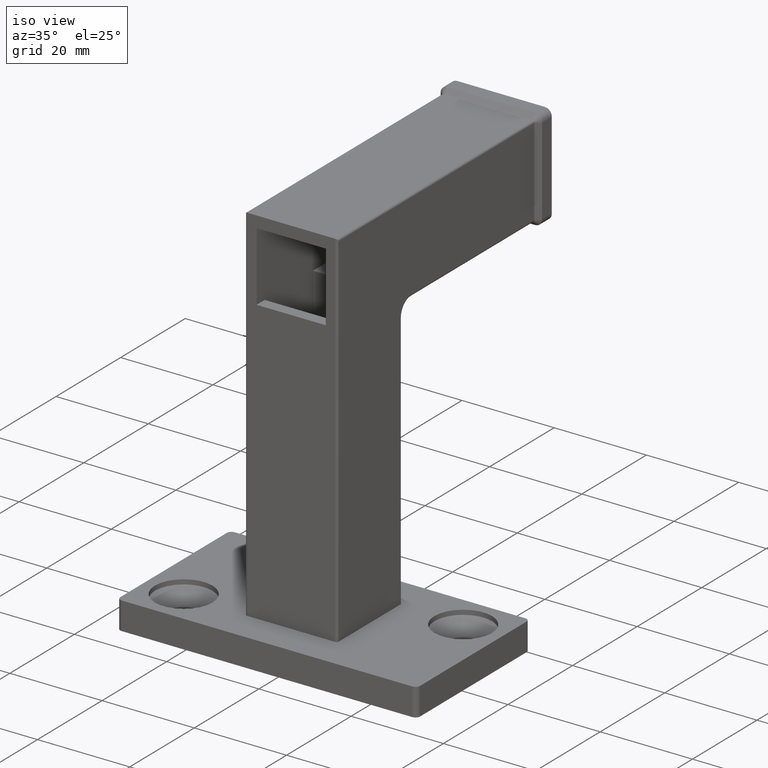
[diagram: clean part render]
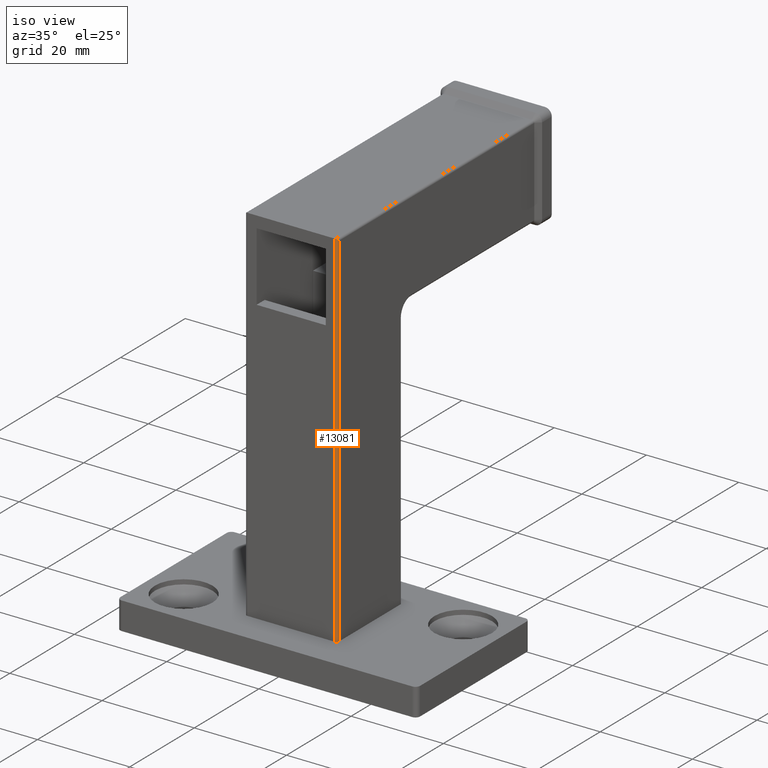
[diagram: same view with one face highlighted and labeled with its STEP entity id]
A machine part, iso view. The second image highlights one B-rep face of the part: STEP entity #13081.
In plain terms, the highlighted cylindrical surface (edge-blend (fillet) strip) has radius 0.5 mm, axis along (0, 0, -1).
Its self-contained STEP definition (entity closure, byte-faithful):
#196 = EDGE_CURVE ( 'NONE', #2742, #10116, #4593, .T. ) ;
#764 = LINE ( 'NONE', #5432, #9375 ) ;
#866 = EDGE_CURVE ( 'NONE', #10116, #13154, #764, .T. ) ;
#870 = ORIENTED_EDGE ( 'NONE', *, *, #10355, .F. ) ;
#2742 = VERTEX_POINT ( 'NONE', #13464 ) ;
#2950 = CARTESIAN_POINT ( 'NONE',  ( 9.792893218813455647, -10.00000000000000533, 84.99999999999998579 ) ) ;
#3315 = DIRECTION ( 'NONE',  ( 2.736911063134408949E-48, 1.224646799147353454E-16, -1.000000000000000000 ) ) ;
#3329 = AXIS2_PLACEMENT_3D ( 'NONE', #8799, #11838, #3648 ) ;
#3442 = CARTESIAN_POINT ( 'NONE',  ( 9.499999999999998224, -9.500000000000007105, 103.2842712474619020 ) ) ;
#3648 = DIRECTION ( 'NONE',  ( -1.000000000000000000, 0.000000000000000000, 0.000000000000000000 ) ) ;
#4034 = EDGE_LOOP ( 'NONE', ( #8776, #10284, #870, #10896 ) ) ;
#4308 = DIRECTION ( 'NONE',  ( -3.038581678643136274E-64, -1.224646799147353454E-16, 1.000000000000000000 ) ) ;
#4393 = CARTESIAN_POINT ( 'NONE',  ( 9.499999999999998224, -10.00000000000000888, 84.99999999999998579 ) ) ;
#4431 = DIRECTION ( 'NONE',  ( 3.038581678643136274E-64, 1.224646799147353454E-16, -1.000000000000000000 ) ) ;
#4477 = CARTESIAN_POINT ( 'NONE',  ( 9.999999999999998224, -9.500000000000003553, 103.2842712474619020 ) ) ;
#4593 = CIRCLE ( 'NONE', #3329, 0.5000000000000004441 ) ;
#5432 = CARTESIAN_POINT ( 'NONE',  ( 9.499999999999998224, -10.00000000000001066, 103.2842712474619020 ) ) ;
#6116 = CARTESIAN_POINT ( 'NONE',  ( 9.999999999999998224, -9.500000000000005329, 84.49999999999997158 ) ) ;
#6150 = AXIS2_PLACEMENT_3D ( 'NONE', #3442, #4431, #12737 ) ;
#6421 = LINE ( 'NONE', #4477, #7222 ) ;
#6661 = EDGE_CURVE ( 'NONE', #7411, #2742, #6421, .T. ) ;
#6786 = CARTESIAN_POINT ( 'NONE',  ( 9.499999999999998224, -9.999999999999998224, 6.000000000000000000 ) ) ;
#7222 = VECTOR ( 'NONE', #3315, 1000.000000000000000 ) ;
#7411 = VERTEX_POINT ( 'NONE', #8895 ) ;
#8776 = ORIENTED_EDGE ( 'NONE', *, *, #196, .F. ) ;
#8799 = CARTESIAN_POINT ( 'NONE',  ( 9.499999999999998224, -9.499999999999994671, 6.000000000000005329 ) ) ;
#8871 =( BOUNDED_CURVE ( )  B_SPLINE_CURVE ( 3, ( #12334, #2950, #10207, #6116 ),
 .UNSPECIFIED., .F., .F. ) 
 B_SPLINE_CURVE_WITH_KNOTS ( ( 4, 4 ),
 ( 3.141592653589793116, 4.712388980384710102 ),
 .UNSPECIFIED. ) 
 CURVE ( )  GEOMETRIC_REPRESENTATION_ITEM ( )  RATIONAL_B_SPLINE_CURVE ( ( 1.000000000000000000, 0.8047378541243601635, 0.8047378541243601635, 1.000000000000000000 ) ) 
 REPRESENTATION_ITEM ( '' )  );
#8895 = CARTESIAN_POINT ( 'NONE',  ( 9.999999999999998224, -9.500000000000005329, 84.49999999999997158 ) ) ;
#9375 = VECTOR ( 'NONE', #4308, 1000.000000000000000 ) ;
#9436 = FACE_OUTER_BOUND ( 'NONE', #4034, .T. ) ;
#9752 = CYLINDRICAL_SURFACE ( 'NONE', #6150, 0.5000000000000004441 ) ;
#10116 = VERTEX_POINT ( 'NONE', #6786 ) ;
#10207 = CARTESIAN_POINT ( 'NONE',  ( 10.00000000000000355, -9.792893218813450318, 84.79289321881341834 ) ) ;
#10284 = ORIENTED_EDGE ( 'NONE', *, *, #6661, .F. ) ;
#10355 = EDGE_CURVE ( 'NONE', #13154, #7411, #8871, .T. ) ;
#10896 = ORIENTED_EDGE ( 'NONE', *, *, #866, .F. ) ;
#11838 = DIRECTION ( 'NONE',  ( 0.000000000000000000, 0.000000000000000000, -1.000000000000000000 ) ) ;
#12334 = CARTESIAN_POINT ( 'NONE',  ( 9.499999999999998224, -10.00000000000000888, 84.99999999999998579 ) ) ;
#12737 = DIRECTION ( 'NONE',  ( 0.000000000000000000, 1.000000000000000000, 0.000000000000000000 ) ) ;
#13081 = ADVANCED_FACE ( 'NONE', ( #9436 ), #9752, .T. ) ;
#13154 = VERTEX_POINT ( 'NONE', #4393 ) ;
#13464 = CARTESIAN_POINT ( 'NONE',  ( 9.999999999999998224, -9.499999999999994671, 6.000000000000000000 ) ) ;